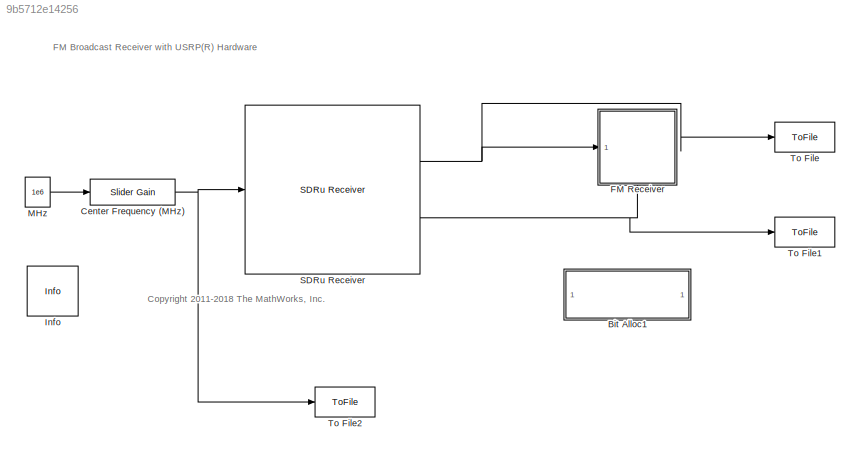
MODEL slx_9b5712e14256
KIND model
CONFIG AbsTol = auto
CONFIG EnableMultiTasking = off
CONFIG FixedStep = auto
CONFIG InitFcn = platform = get_param([gcs '/SDRu Receiver'], 'Platform');\nstereoFMRxParams = getParamsSdruFMExamples(platform);\nclear platform
CONFIG MaxStep = auto
CONFIG MinStep = auto
CONFIG PostLoadFcn = sdruExampleSetAvailableRadio();\n
CONFIG PreLoadFcn = platform = sdruExampleFindRadio;\nstereoFMRxParams = getParamsSdruFMExamples(platform);\nclear platform
CONFIG RelTol = 1e-3
CONFIG SampleTimeConstraint = Unconstrained
CONFIG Solver = FixedStepDiscrete
CONFIG SolverName = FixedStepDiscrete
CONFIG StartTime = 0.0
CONFIG StopTime = inf
BLOCK [SubSystem] Bit Alloc1
  OpenFcn = sdruFMReceiverMidiSimulinkExample
  Ports = []
  RequestExecContextInheritance = off
BLOCK [Reference] Center Frequency (MHz)  REF=simulink/Math
Operations/Slider
Gain
  Ports = [1, 1]
  SourceBlock = simulink/Math\nOperations/Slider\nGain
  SourceProductBaseCode = SL
  SourceProductName = Simulink
  SourceType = Slider Gain
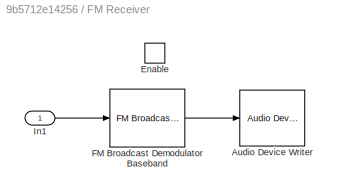
BLOCK [SubSystem] FM Receiver
  Ports = [1, 0, 1]
  RequestExecContextInheritance = off
  TreatAsAtomicUnit = on
BLOCK [Reference] FM Receiver/Audio Device Writer  REF=dspsnks4/Audio Device
Writer
  Ports = [1]
  SourceBlock = dspsnks4/Audio Device\nWriter
  SourceProductBaseCode = DS
  SourceProductName = DSP System Toolbox
  SourceType = Audio Device Writer
BLOCK [EnablePort] FM Receiver/Enable
  Ports = []
BLOCK [Reference] FM Receiver/FM Broadcast Demodulator Baseband  REF=commanabbnd3/FM Broadcast
Demodulator
Baseband
  Ports = [1, 1]
  SourceBlock = commanabbnd3/FM Broadcast\nDemodulator\nBaseband
  SourceProductBaseCode = CM
  SourceProductName = Communications Toolbox
  SourceType = FM Broadcast Demodulator Baseband
BLOCK [Inport] FM Receiver/In1
  IconDisplay = Port number
BLOCK [Reference] Info  REF=sdrublksprivate/Info
  Ports = []
  SourceBlock = sdrublksprivate/Info
  SourceProductBaseCode = USRP
  SourceProductName = Communications Toolbox Support Package for USRP Radio
  SourceType = Info
BLOCK [Constant] MHz
  FramePeriod = -1
  SampleTime = -1
  Value = 1e6
  VectorParams1D = off
BLOCK [Reference] SDRu Receiver  REF=commsdrhw_v2/SDRu Receiver
  Ports = [1, 2]
  SourceBlock = commsdrhw_v2/SDRu Receiver
  SourceProductBaseCode = USRP
  SourceProductName = Communications Toolbox Support Package for USRP Radio
  SourceType = SDRu Receiver
BLOCK [ToFile] To File
  Filename = data.mat
  Ports = [1]
  SaveFormat = Timeseries
BLOCK [ToFile] To File1
  Filename = lenght.mat
  Ports = [1]
  SaveFormat = Timeseries
BLOCK [ToFile] To File2
  Filename = frecuenciaC.mat
  Ports = [1]
  SaveFormat = Timeseries
ANNOTATION (root): <copyright redacted>
ANNOTATION (root): FM Broadcast Receiver with USRP(R) Hardware
NET Center Frequency (MHz):1 -> SDRu Receiver:1, To File2:1
LINE FM Receiver/FM Broadcast Demodulator Baseband:1 -> FM Receiver/Audio Device Writer:1
LINE FM Receiver/In1:1 -> FM Receiver/FM Broadcast Demodulator Baseband:1
LINE MHz:1 -> Center Frequency (MHz):1
NET SDRu Receiver:1 -> FM Receiver:1, To File:1
NET SDRu Receiver:2 -> FM Receiver:enable, To File1:1
note: NET lines group one-source signal fan-out (src -> all destinations, sorted); 1:1 wires keep LINE
